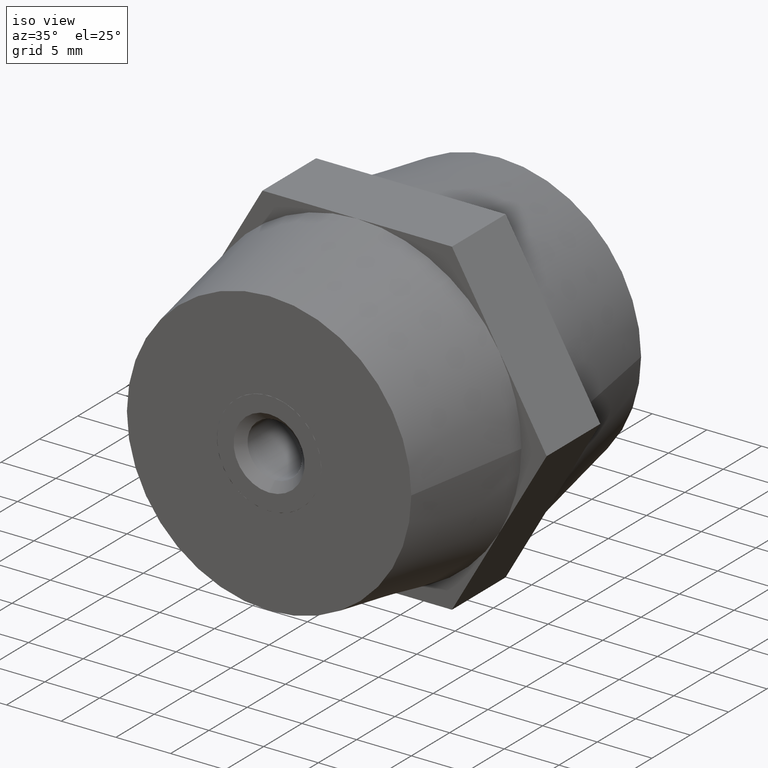
[diagram: clean part render]
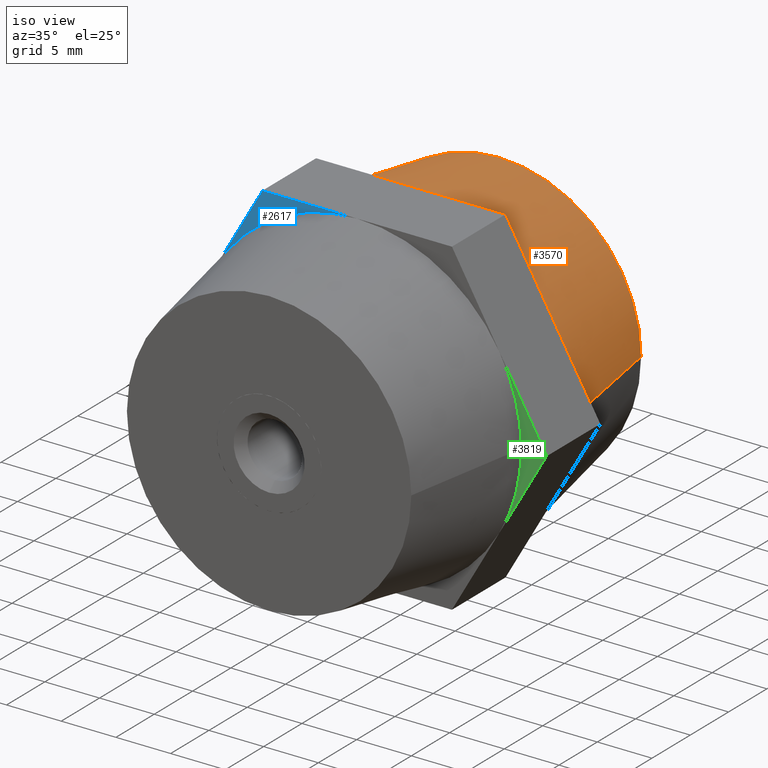
[diagram: same view with three faces highlighted in distinct colors, each labeled with its STEP entity id]
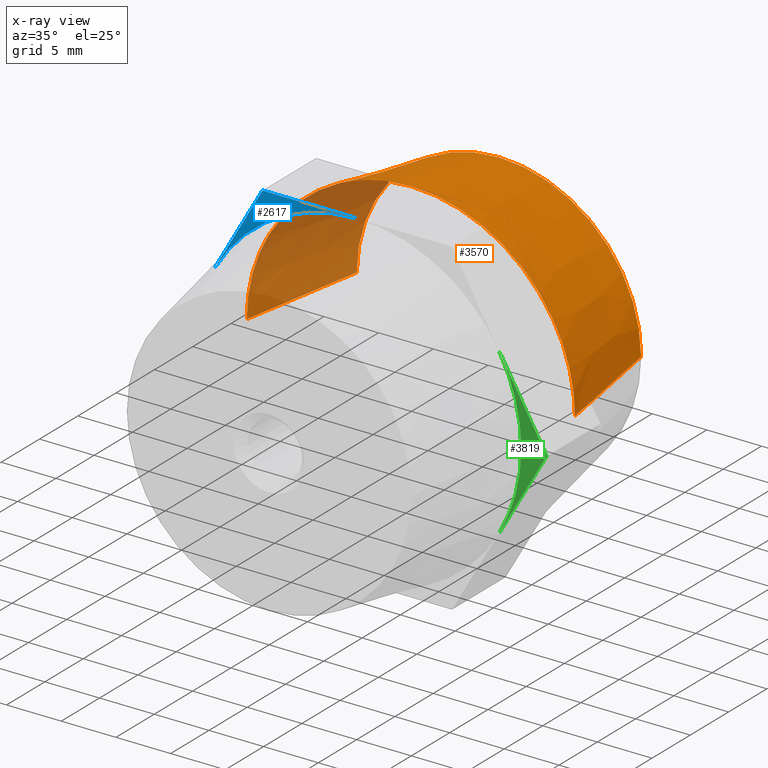
[diagram: x-ray of the same camera — body ghosted, the three highlighted faces saturated]
A machine part, iso view with three faces highlighted in distinct colors.
The next image is the same camera in x-ray (body ghosted, the three faces saturated) — at least one of them is partly hidden behind the body in this view.
Their STEP definitions:

[orange] entity #3570 — the highlighted conical surface has half-angle 9.866 deg.
#36 = CARTESIAN_POINT ( 'NONE',  ( -1.949687717460415100E-031, 15.00000000000000000, 0.0000000000000000000 ) ) ;
#198 = AXIS2_PLACEMENT_3D ( 'NONE', #36, #637, #2175 ) ;
#204 = VERTEX_POINT ( 'NONE', #3164 ) ;
#241 = EDGE_CURVE ( 'NONE', #2727, #204, #1867, .T. ) ;
#418 = EDGE_CURVE ( 'NONE', #204, #580, #1957, .T. ) ;
#485 = EDGE_CURVE ( 'NONE', #580, #1819, #1245, .T. ) ;
#555 = CARTESIAN_POINT ( 'NONE',  ( 13.00000000000000000, 15.00000000000000200, 0.0000000000000000000 ) ) ;
#574 = EDGE_CURVE ( 'NONE', #2727, #1384, #3320, .T. ) ;
#580 = VERTEX_POINT ( 'NONE', #2290 ) ;
#610 = CIRCLE ( 'NONE', #2164, 15.00000000000000000 ) ;
#637 = DIRECTION ( 'NONE',  ( 1.224646799147352000E-016, -1.000000000000000000, 0.0000000000000000000 ) ) ;
#653 = ORIENTED_EDGE ( 'NONE', *, *, #485, .T. ) ;
#739 = ORIENTED_EDGE ( 'NONE', *, *, #241, .T. ) ;
#757 = CONICAL_SURFACE ( 'NONE', #198, 13.00000000000000000, 0.1721908145229393800 ) ;
#776 = DIRECTION ( 'NONE',  ( -0.1713411747512479400, -0.9852117548196743800, 2.098324212212632000E-017 ) ) ;
#805 = FACE_OUTER_BOUND ( 'NONE', #2712, .T. ) ;
#982 = LINE ( 'NONE', #555, #1269 ) ;
#1025 = CARTESIAN_POINT ( 'NONE',  ( -13.00000000000000000, 14.99999999999999800, 1.714505518806294600E-015 ) ) ;
#1059 = ORIENTED_EDGE ( 'NONE', *, *, #2565, .T. ) ;
#1112 = CARTESIAN_POINT ( 'NONE',  ( 1.408343819019456000E-015, 3.500000000000000000, 0.0000000000000000000 ) ) ;
#1245 = CIRCLE ( 'NONE', #1807, 15.00000000000000000 ) ;
#1269 = VECTOR ( 'NONE', #2982, 1000.000000000000100 ) ;
#1279 = CARTESIAN_POINT ( 'NONE',  ( 13.00000000000000000, 15.00000000000000200, 0.0000000000000000000 ) ) ;
#1305 = DIRECTION ( 'NONE',  ( -1.000000000000000000, -1.156482317317871500E-016, 0.0000000000000000000 ) ) ;
#1363 = CARTESIAN_POINT ( 'NONE',  ( -1.949687717460415100E-031, 15.00000000000000000, 0.0000000000000000000 ) ) ;
#1384 = VERTEX_POINT ( 'NONE', #1279 ) ;
#1629 = EDGE_CURVE ( 'NONE', #1785, #2671, #2141, .T. ) ;
#1682 = DIRECTION ( 'NONE',  ( -1.000000000000000000, -1.156482317317871500E-016, 0.0000000000000000000 ) ) ;
#1785 = VERTEX_POINT ( 'NONE', #2378 ) ;
#1807 = AXIS2_PLACEMENT_3D ( 'NONE', #3531, #3869, #2964 ) ;
#1819 = VERTEX_POINT ( 'NONE', #2400 ) ;
#1867 = LINE ( 'NONE', #2279, #2963 ) ;
#1932 = AXIS2_PLACEMENT_3D ( 'NONE', #3151, #2209, #1305 ) ;
#1954 = CARTESIAN_POINT ( 'NONE',  ( 1.408343819019456000E-015, 3.500000000000000000, 0.0000000000000000000 ) ) ;
#1957 = CIRCLE ( 'NONE', #1932, 15.00000000000000000 ) ;
#2008 = DIRECTION ( 'NONE',  ( -1.000000000000000000, -1.156482317317871500E-016, 0.0000000000000000000 ) ) ;
#2080 = ORIENTED_EDGE ( 'NONE', *, *, #1629, .T. ) ;
#2141 = CIRCLE ( 'NONE', #3857, 15.00000000000000000 ) ;
#2164 = AXIS2_PLACEMENT_3D ( 'NONE', #1954, #2601, #1682 ) ;
#2175 = DIRECTION ( 'NONE',  ( 1.000000000000000000, 1.334402673828313100E-016, 0.0000000000000000000 ) ) ;
#2209 = DIRECTION ( 'NONE',  ( -1.224646799147352000E-016, 1.000000000000000000, 0.0000000000000000000 ) ) ;
#2279 = CARTESIAN_POINT ( 'NONE',  ( -13.00000000000000000, 14.99999999999999800, 1.592040838891559100E-015 ) ) ;
#2285 = ORIENTED_EDGE ( 'NONE', *, *, #2914, .F. ) ;
#2290 = CARTESIAN_POINT ( 'NONE',  ( -12.99038105676658000, 3.500000000000000000, 7.500000000000000000 ) ) ;
#2378 = CARTESIAN_POINT ( 'NONE',  ( 12.99038105676658000, 3.500000000000000000, 7.500000000000000000 ) ) ;
#2400 = CARTESIAN_POINT ( 'NONE',  ( -4.506943796211479700E-015, 3.500000000000000000, 15.00000000000000000 ) ) ;
#2433 = ORIENTED_EDGE ( 'NONE', *, *, #574, .F. ) ;
#2565 = EDGE_CURVE ( 'NONE', #1819, #1785, #610, .T. ) ;
#2601 = DIRECTION ( 'NONE',  ( -1.224646799147352000E-016, 1.000000000000000000, 0.0000000000000000000 ) ) ;
#2671 = VERTEX_POINT ( 'NONE', #3679 ) ;
#2712 = EDGE_LOOP ( 'NONE', ( #2433, #739, #3472, #653, #1059, #2080, #2285 ) ) ;
#2727 = VERTEX_POINT ( 'NONE', #1025 ) ;
#2914 = EDGE_CURVE ( 'NONE', #1384, #2671, #982, .T. ) ;
#2963 = VECTOR ( 'NONE', #776, 1000.000000000000100 ) ;
#2964 = DIRECTION ( 'NONE',  ( -1.000000000000000000, -1.156482317317871500E-016, 0.0000000000000000000 ) ) ;
#2982 = DIRECTION ( 'NONE',  ( 0.1713411747512481600, -0.9852117548196743800, 0.0000000000000000000 ) ) ;
#3151 = CARTESIAN_POINT ( 'NONE',  ( 1.408343819019456000E-015, 3.500000000000000000, 0.0000000000000000000 ) ) ;
#3158 = DIRECTION ( 'NONE',  ( -1.224646799147352000E-016, 1.000000000000000000, 0.0000000000000000000 ) ) ;
#3164 = CARTESIAN_POINT ( 'NONE',  ( -15.00000000000000200, 3.499999999999998200, 1.836970198721030400E-015 ) ) ;
#3205 = DIRECTION ( 'NONE',  ( -1.000000000000000000, -1.334402673828313100E-016, 0.0000000000000000000 ) ) ;
#3210 = DIRECTION ( 'NONE',  ( -1.224646799147352000E-016, 1.000000000000000000, 0.0000000000000000000 ) ) ;
#3320 = CIRCLE ( 'NONE', #3827, 13.00000000000000000 ) ;
#3472 = ORIENTED_EDGE ( 'NONE', *, *, #418, .T. ) ;
#3531 = CARTESIAN_POINT ( 'NONE',  ( 1.408343819019456000E-015, 3.500000000000000000, 0.0000000000000000000 ) ) ;
#3570 = ADVANCED_FACE ( 'NONE', ( #805 ), #757, .T. ) ;
#3679 = CARTESIAN_POINT ( 'NONE',  ( 15.00000000000000500, 3.500000000000001800, 0.0000000000000000000 ) ) ;
#3827 = AXIS2_PLACEMENT_3D ( 'NONE', #1363, #3158, #3205 ) ;
#3857 = AXIS2_PLACEMENT_3D ( 'NONE', #1112, #3210, #2008 ) ;
#3869 = DIRECTION ( 'NONE',  ( -1.224646799147352000E-016, 1.000000000000000000, 0.0000000000000000000 ) ) ;

[blue] entity #2617 — the highlighted planar face has unit normal (0, 1, 0).
#74 = PLANE ( 'NONE',  #1606 ) ;
#309 = VERTEX_POINT ( 'NONE', #911 ) ;
#552 = EDGE_CURVE ( 'NONE', #309, #2674, #1452, .T. ) ;
#575 = VERTEX_POINT ( 'NONE', #795 ) ;
#581 = VECTOR ( 'NONE', #1416, 1000.000000000000000 ) ;
#656 = AXIS2_PLACEMENT_3D ( 'NONE', #2174, #2779, #3390 ) ;
#795 = CARTESIAN_POINT ( 'NONE',  ( -12.99038105676658000, -3.500000000000000000, 7.500000000000000000 ) ) ;
#911 = CARTESIAN_POINT ( 'NONE',  ( -8.660254037844390900, -3.500000000000000000, 15.00000000000000000 ) ) ;
#966 = DIRECTION ( 'NONE',  ( 0.0000000000000000000, 1.000000000000000000, 0.0000000000000000000 ) ) ;
#1026 = ORIENTED_EDGE ( 'NONE', *, *, #552, .F. ) ;
#1039 = VECTOR ( 'NONE', #2520, 1000.000000000000000 ) ;
#1416 = DIRECTION ( 'NONE',  ( 1.000000000000000000, 0.0000000000000000000, 3.004629197474320000E-016 ) ) ;
#1452 = LINE ( 'NONE', #2898, #581 ) ;
#1606 = AXIS2_PLACEMENT_3D ( 'NONE', #3706, #966, #1906 ) ;
#1632 = ORIENTED_EDGE ( 'NONE', *, *, #2639, .T. ) ;
#1906 = DIRECTION ( 'NONE',  ( 0.0000000000000000000, 0.0000000000000000000, 1.000000000000000000 ) ) ;
#1936 = LINE ( 'NONE', #3729, #1039 ) ;
#2033 = CIRCLE ( 'NONE', #656, 15.00000000000000000 ) ;
#2174 = CARTESIAN_POINT ( 'NONE',  ( 2.265596578422605000E-015, -3.500000000000000000, 0.0000000000000000000 ) ) ;
#2298 = ORIENTED_EDGE ( 'NONE', *, *, #3120, .F. ) ;
#2520 = DIRECTION ( 'NONE',  ( 0.4999999999999998900, 0.0000000000000000000, 0.8660254037844387100 ) ) ;
#2617 = ADVANCED_FACE ( 'NONE', ( #3630 ), #74, .F. ) ;
#2639 = EDGE_CURVE ( 'NONE', #575, #2674, #2033, .T. ) ;
#2674 = VERTEX_POINT ( 'NONE', #3435 ) ;
#2744 = EDGE_LOOP ( 'NONE', ( #2298, #1632, #1026 ) ) ;
#2779 = DIRECTION ( 'NONE',  ( -1.224646799147352000E-016, 1.000000000000000000, 0.0000000000000000000 ) ) ;
#2898 = CARTESIAN_POINT ( 'NONE',  ( -8.660254037844390900, -3.500000000000000000, 15.00000000000000000 ) ) ;
#3120 = EDGE_CURVE ( 'NONE', #575, #309, #1936, .T. ) ;
#3390 = DIRECTION ( 'NONE',  ( -1.000000000000000000, -1.156482317317871500E-016, 0.0000000000000000000 ) ) ;
#3435 = CARTESIAN_POINT ( 'NONE',  ( -2.241347217788875100E-015, -3.500000000000000000, 15.00000000000000000 ) ) ;
#3630 = FACE_OUTER_BOUND ( 'NONE', #2744, .T. ) ;
#3706 = CARTESIAN_POINT ( 'NONE',  ( 0.0000000000000000000, -3.500000000000000000, 0.0000000000000000000 ) ) ;
#3729 = CARTESIAN_POINT ( 'NONE',  ( -17.32050807568875300, -3.500000000000000000, 1.213170205880540100E-015 ) ) ;

[green] entity #3819 — the highlighted planar face has unit normal (0, 1, 0).
#15 = LINE ( 'NONE', #428, #1775 ) ;
#35 = AXIS2_PLACEMENT_3D ( 'NONE', #1617, #2551, #3760 ) ;
#187 = CARTESIAN_POINT ( 'NONE',  ( 17.32050807568875300, -3.500000000000000000, -5.044204055299929100E-015 ) ) ;
#209 = PLANE ( 'NONE',  #1282 ) ;
#335 = VERTEX_POINT ( 'NONE', #3043 ) ;
#428 = CARTESIAN_POINT ( 'NONE',  ( 8.660254037844390900, -3.500000000000000000, 15.00000000000000000 ) ) ;
#511 = DIRECTION ( 'NONE',  ( 0.0000000000000000000, 1.000000000000000000, 0.0000000000000000000 ) ) ;
#572 = CARTESIAN_POINT ( 'NONE',  ( 12.99038105676658000, -3.500000000000000000, -7.500000000000000000 ) ) ;
#608 = EDGE_CURVE ( 'NONE', #2891, #3306, #827, .T. ) ;
#827 = LINE ( 'NONE', #187, #2517 ) ;
#832 = DIRECTION ( 'NONE',  ( 0.0000000000000000000, 0.0000000000000000000, 1.000000000000000000 ) ) ;
#887 = EDGE_CURVE ( 'NONE', #335, #3306, #3234, .T. ) ;
#1176 = EDGE_CURVE ( 'NONE', #2254, #2891, #15, .T. ) ;
#1282 = AXIS2_PLACEMENT_3D ( 'NONE', #2323, #511, #832 ) ;
#1301 = ORIENTED_EDGE ( 'NONE', *, *, #608, .F. ) ;
#1342 = DIRECTION ( 'NONE',  ( -0.4999999999999998900, 0.0000000000000000000, -0.8660254037844387100 ) ) ;
#1617 = CARTESIAN_POINT ( 'NONE',  ( 2.265596578422605000E-015, -3.500000000000000000, 3.194730780384400500E-016 ) ) ;
#1665 = EDGE_CURVE ( 'NONE', #2254, #335, #2460, .T. ) ;
#1775 = VECTOR ( 'NONE', #3677, 1000.000000000000000 ) ;
#1914 = ORIENTED_EDGE ( 'NONE', *, *, #1176, .F. ) ;
#2254 = VERTEX_POINT ( 'NONE', #3050 ) ;
#2262 = ORIENTED_EDGE ( 'NONE', *, *, #1665, .T. ) ;
#2323 = CARTESIAN_POINT ( 'NONE',  ( 0.0000000000000000000, -3.500000000000000000, 0.0000000000000000000 ) ) ;
#2446 = FACE_OUTER_BOUND ( 'NONE', #2846, .T. ) ;
#2460 = CIRCLE ( 'NONE', #3473, 15.00000000000000000 ) ;
#2517 = VECTOR ( 'NONE', #1342, 1000.000000000000000 ) ;
#2551 = DIRECTION ( 'NONE',  ( 0.0000000000000000000, 1.000000000000000000, 0.0000000000000000000 ) ) ;
#2846 = EDGE_LOOP ( 'NONE', ( #1914, #2262, #2900, #1301 ) ) ;
#2891 = VERTEX_POINT ( 'NONE', #3303 ) ;
#2900 = ORIENTED_EDGE ( 'NONE', *, *, #887, .T. ) ;
#2910 = CARTESIAN_POINT ( 'NONE',  ( 2.265596578422605000E-015, -3.500000000000000000, 3.194730780384400500E-016 ) ) ;
#3043 = CARTESIAN_POINT ( 'NONE',  ( 15.00000000000000200, -3.500000000000000000, 1.836970198721029600E-015 ) ) ;
#3050 = CARTESIAN_POINT ( 'NONE',  ( 12.99038105676660000, -3.500000000000000000, 7.500000000000000000 ) ) ;
#3234 = CIRCLE ( 'NONE', #35, 15.00000000000000000 ) ;
#3303 = CARTESIAN_POINT ( 'NONE',  ( 17.32050807568875300, -3.500000000000000000, -5.044204055299929100E-015 ) ) ;
#3306 = VERTEX_POINT ( 'NONE', #572 ) ;
#3473 = AXIS2_PLACEMENT_3D ( 'NONE', #2910, #3540, #3834 ) ;
#3540 = DIRECTION ( 'NONE',  ( 0.0000000000000000000, 1.000000000000000000, 0.0000000000000000000 ) ) ;
#3677 = DIRECTION ( 'NONE',  ( 0.4999999999999998900, 0.0000000000000000000, -0.8660254037844387100 ) ) ;
#3760 = DIRECTION ( 'NONE',  ( 0.0000000000000000000, 0.0000000000000000000, 1.000000000000000000 ) ) ;
#3819 = ADVANCED_FACE ( 'NONE', ( #2446 ), #209, .F. ) ;
#3834 = DIRECTION ( 'NONE',  ( 0.0000000000000000000, 0.0000000000000000000, 1.000000000000000000 ) ) ;